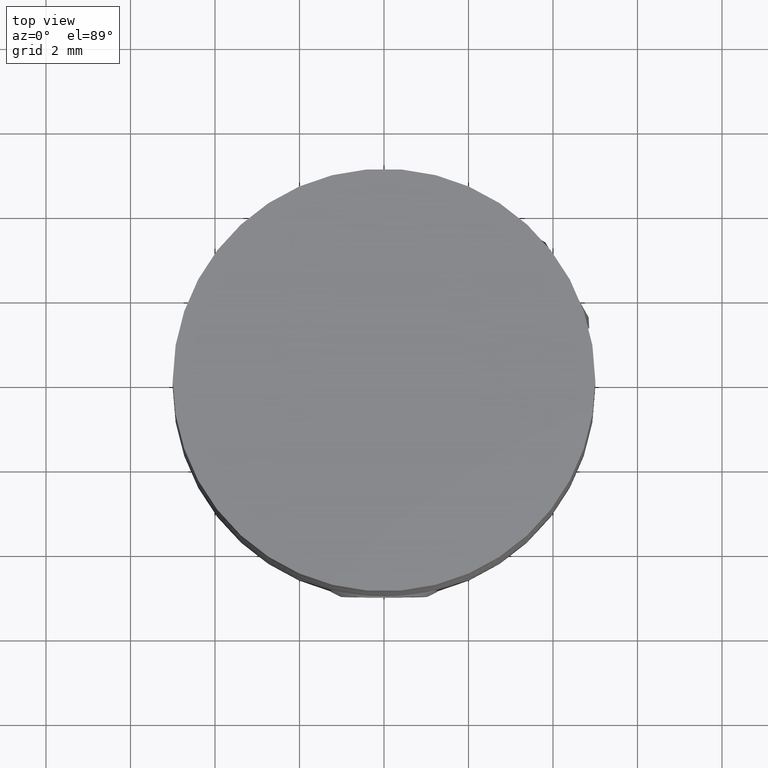
[diagram: clean part render]
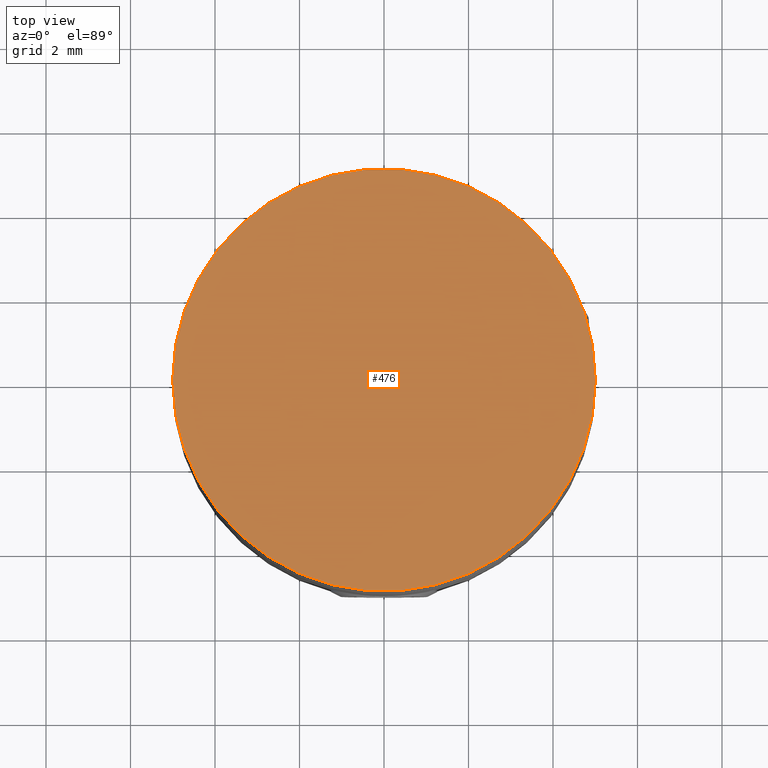
[diagram: same view with one face highlighted and labeled with its STEP entity id]
A machine part, top view. The second image highlights one B-rep face of the part: STEP entity #476.
In plain terms, the highlighted planar face has unit normal (0, 0, 1).
Its self-contained STEP definition (entity closure, byte-faithful):
#476 = ADVANCED_FACE( '', ( #546 ), #547, .T. );
#546 = FACE_OUTER_BOUND( '', #633, .T. );
#547 = PLANE( '', #634 );
#633 = EDGE_LOOP( '', ( #743 ) );
#634 = AXIS2_PLACEMENT_3D( '', #744, #745, #746 );
#743 = ORIENTED_EDGE( '', *, *, #842, .T. );
#744 = CARTESIAN_POINT( '', ( 0.000000000000000, 0.000000000000000, 4.00000000000000 ) );
#745 = DIRECTION( '', ( 0.000000000000000, 0.000000000000000, 1.00000000000000 ) );
#746 = DIRECTION( '', ( 1.00000000000000, 0.000000000000000, 0.000000000000000 ) );
#842 = EDGE_CURVE( '', #895, #895, #896, .T. );
#895 = VERTEX_POINT( '', #1101 );
#896 = CIRCLE( '', #1102, 5.00000000000000 );
#1101 = CARTESIAN_POINT( '', ( 5.00000000000000, 0.000000000000000, 4.00000000000000 ) );
#1102 = AXIS2_PLACEMENT_3D( '', #1191, #1192, #1193 );
#1191 = CARTESIAN_POINT( '', ( 0.000000000000000, 0.000000000000000, 4.00000000000000 ) );
#1192 = DIRECTION( '', ( 0.000000000000000, 0.000000000000000, 1.00000000000000 ) );
#1193 = DIRECTION( '', ( 1.00000000000000, 0.000000000000000, 0.000000000000000 ) );